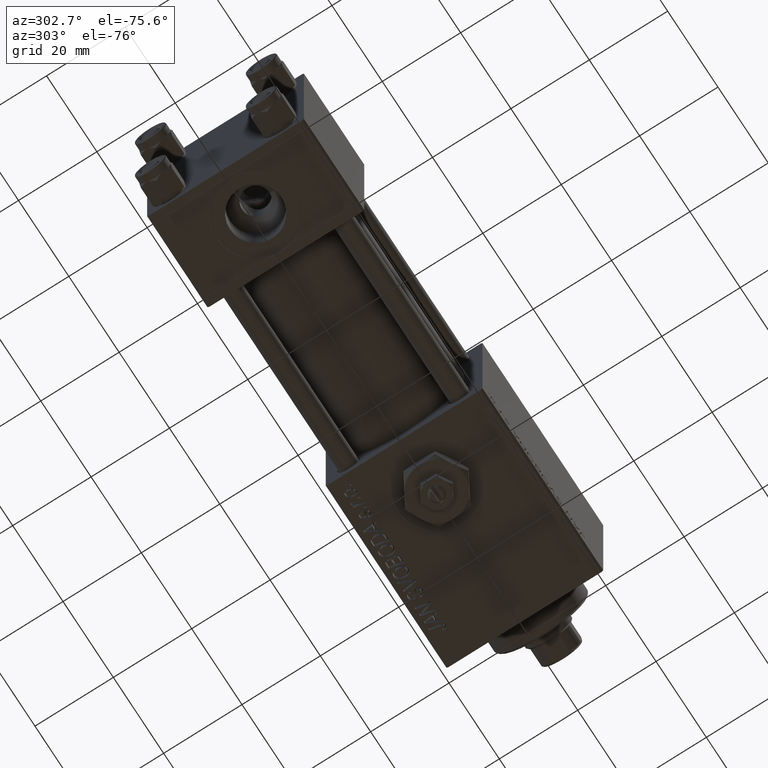
[diagram: clean part render]
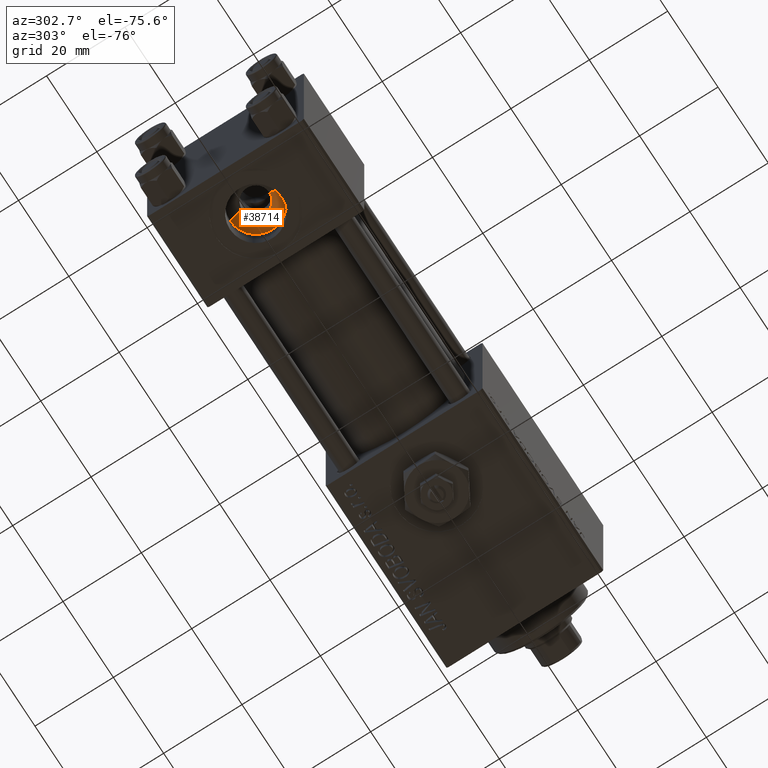
[diagram: same view with one face highlighted and labeled with its STEP entity id]
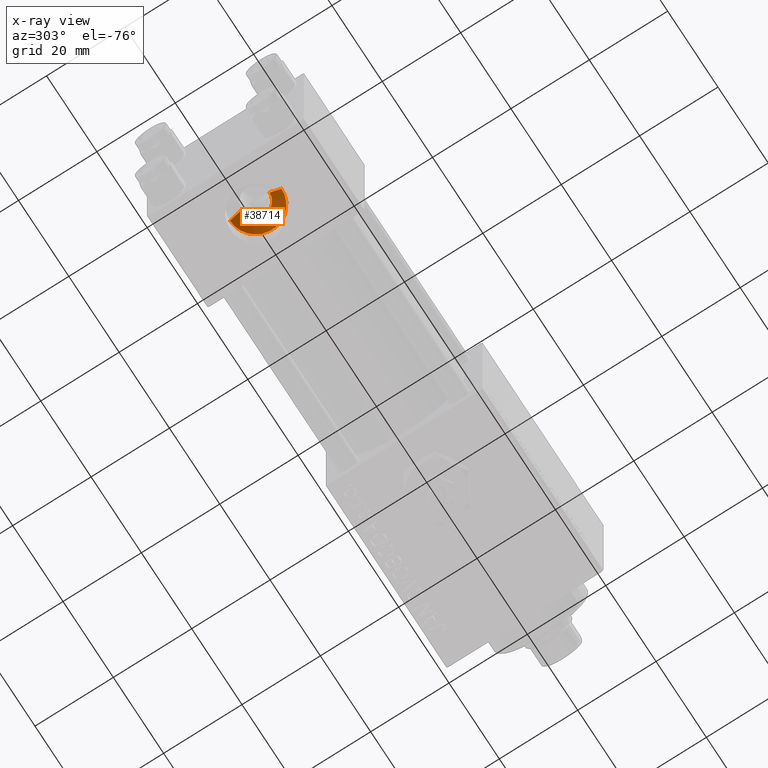
[diagram: x-ray of the same camera — body ghosted, the highlighted face saturated]
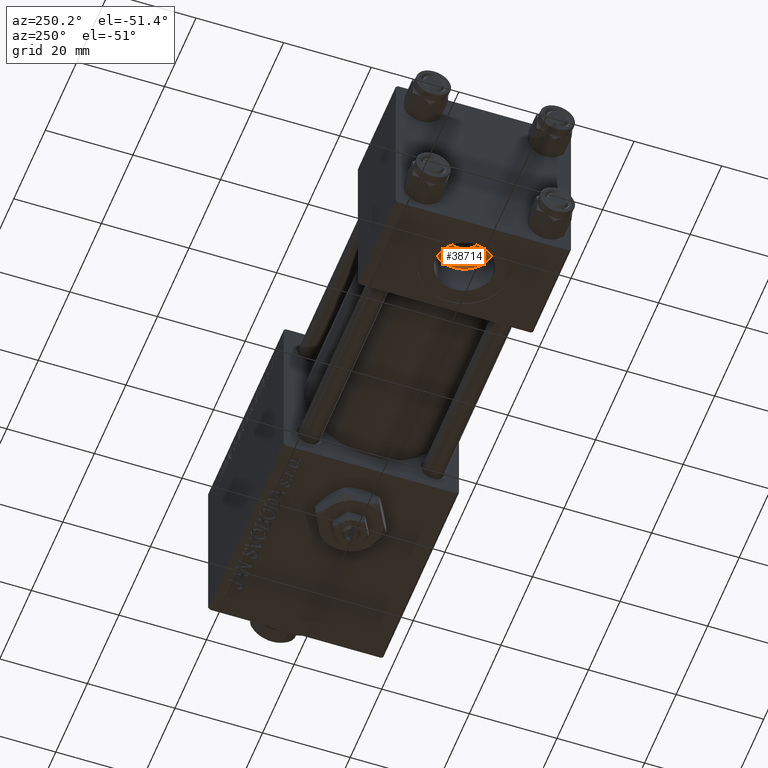
[diagram: same view with one face highlighted and labeled with its STEP entity id]
A machine part, auxiliary view. The second image highlights one B-rep face of the part: STEP entity #38714.
The next image is the same camera in x-ray: the body ghosted, the highlighted face saturated — about 0% of this face is hidden behind the body in this view.
A second angle (auxiliary view) of the same face is appended — the face is thin or edge-on in the first view.
In plain terms, the highlighted conical surface has half-angle 45 deg.
Its self-contained STEP definition (entity closure, byte-faithful):
#268 = DIRECTION ( 'NONE',  ( 0.000000000000000000, 1.000000000000000000, 0.000000000000000000 ) ) ;
#367 = VECTOR ( 'NONE', #28906, 1000.000000000000000 ) ;
#673 = DIRECTION ( 'NONE',  ( -0.000000000000000000, 1.734723475976807587E-16, 1.000000000000000000 ) ) ;
#2416 = LINE ( 'NONE', #46076, #10880 ) ;
#4510 = CARTESIAN_POINT ( 'NONE',  ( 12.00000000000000000, -6.580000000000003624, -12.34000000000000519 ) ) ;
#5198 = ORIENTED_EDGE ( 'NONE', *, *, #5295, .F. ) ;
#5295 = EDGE_CURVE ( 'NONE', #46008, #33213, #47401, .T. ) ;
#6844 = AXIS2_PLACEMENT_3D ( 'NONE', #24158, #673, #48806 ) ;
#7180 = ORIENTED_EDGE ( 'NONE', *, *, #29223, .T. ) ;
#10308 = DIRECTION ( 'NONE',  ( 0.000000000000000000, 1.000000000000000000, 0.000000000000000000 ) ) ;
#10880 = VECTOR ( 'NONE', #26205, 1000.000000000000000 ) ;
#10913 = CARTESIAN_POINT ( 'NONE',  ( 12.00000000000000000, 3.499999999999996891, -9.260000000000006892 ) ) ;
#12662 = DIRECTION ( 'NONE',  ( 0.000000000000000000, -1.734723475976807587E-16, -1.000000000000000000 ) ) ;
#15497 = ORIENTED_EDGE ( 'NONE', *, *, #15895, .F. ) ;
#15895 = EDGE_CURVE ( 'NONE', #17825, #46008, #32603, .T. ) ;
#16877 = CARTESIAN_POINT ( 'NONE',  ( 12.00000000000000000, -3.075930097731347908E-15, -9.260000000000006892 ) ) ;
#17825 = VERTEX_POINT ( 'NONE', #41901 ) ;
#18376 = CONICAL_SURFACE ( 'NONE', #42932, 3.439999999999999947, 0.7853981633974479459 ) ;
#24158 = CARTESIAN_POINT ( 'NONE',  ( 12.00000000000000000, -3.610224928332204888E-15, -12.34000000000000696 ) ) ;
#25453 = DIRECTION ( 'NONE',  ( 0.000000000000000000, -1.734723475976807587E-16, -1.000000000000000000 ) ) ;
#26205 = DIRECTION ( 'NONE',  ( 0.000000000000000000, 0.7071067811865472397, -0.7071067811865479058 ) ) ;
#28906 = DIRECTION ( 'NONE',  ( 8.659560562354931626E-17, -0.7071067811865474617, -0.7071067811865476838 ) ) ;
#29223 = EDGE_CURVE ( 'NONE', #47832, #33213, #2416, .T. ) ;
#32603 = LINE ( 'NONE', #48772, #367 ) ;
#32712 = ORIENTED_EDGE ( 'NONE', *, *, #42050, .F. ) ;
#33213 = VERTEX_POINT ( 'NONE', #33233 ) ;
#33233 = CARTESIAN_POINT ( 'NONE',  ( 12.00000000000000000, 6.579999999999996518, -12.34000000000000874 ) ) ;
#33741 = CIRCLE ( 'NONE', #34562, 3.500000000000000000 ) ;
#34562 = AXIS2_PLACEMENT_3D ( 'NONE', #16877, #12662, #268 ) ;
#38714 = ADVANCED_FACE ( 'NONE', ( #41369 ), #18376, .F. ) ;
#41369 = FACE_OUTER_BOUND ( 'NONE', #42412, .T. ) ;
#41901 = CARTESIAN_POINT ( 'NONE',  ( 12.00000000000000000, -3.500000000000003109, -9.260000000000006892 ) ) ;
#42050 = EDGE_CURVE ( 'NONE', #47832, #17825, #33741, .T. ) ;
#42412 = EDGE_LOOP ( 'NONE', ( #15497, #32712, #7180, #5198 ) ) ;
#42932 = AXIS2_PLACEMENT_3D ( 'NONE', #46574, #25453, #10308 ) ;
#46008 = VERTEX_POINT ( 'NONE', #4510 ) ;
#46076 = CARTESIAN_POINT ( 'NONE',  ( 12.00000000000000000, 3.439999999999996838, -9.200000000000004619 ) ) ;
#46574 = CARTESIAN_POINT ( 'NONE',  ( 12.00000000000000000, -3.065521756875487066E-15, -9.200000000000004619 ) ) ;
#47401 = CIRCLE ( 'NONE', #6844, 6.580000000000000071 ) ;
#47832 = VERTEX_POINT ( 'NONE', #10913 ) ;
#48772 = CARTESIAN_POINT ( 'NONE',  ( 12.00000000000000000, -3.440000000000003055, -9.200000000000004619 ) ) ;
#48806 = DIRECTION ( 'NONE',  ( 0.000000000000000000, 1.000000000000000000, -2.636357866226150465E-16 ) ) ;